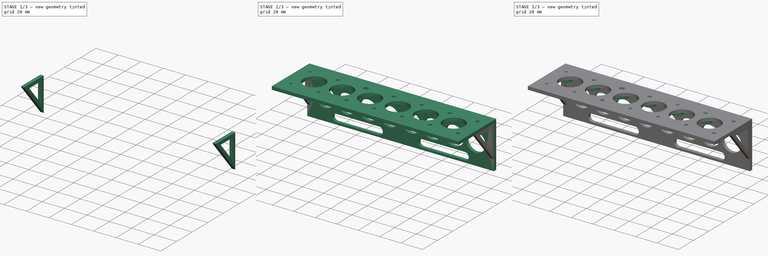
[diagram: build sequence overview — one tinted view per stage of 3, left to right]
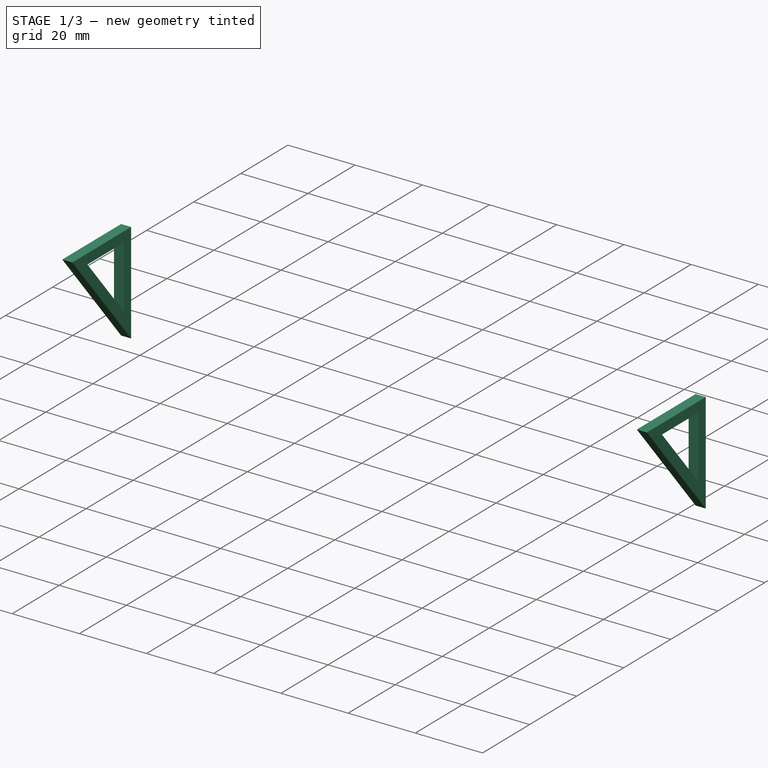
[diagram: stage 1 of 3 — iso view after this stage's code; geometry added in this stage tinted green]
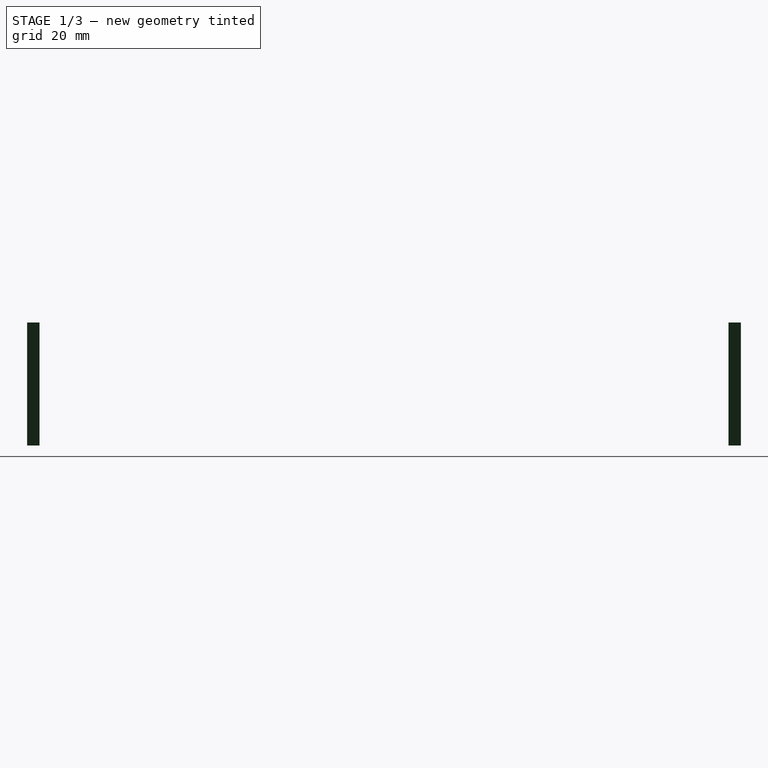
[diagram: stage 1 of 3 — front view after this stage's code; geometry added in this stage tinted green]
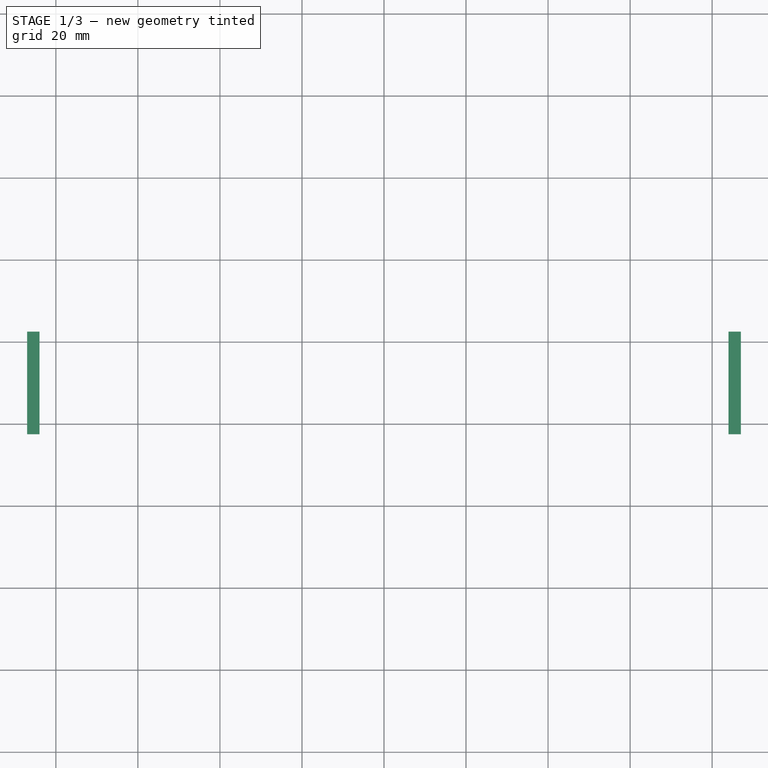
[diagram: stage 1 of 3 — top view after this stage's code; geometry added in this stage tinted green]
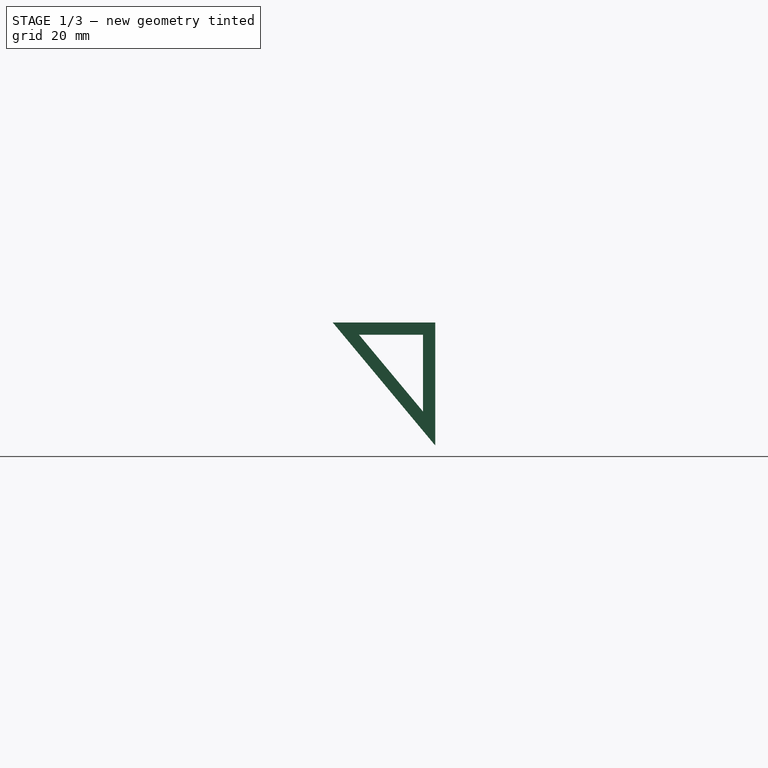
[diagram: stage 1 of 3 — right view after this stage's code; geometry added in this stage tinted green]
FCSTD DOCUMENT  (FreeCAD 0.14R3702 (Git))
Label: mini screwdriver holder
License: CC-BY 3.0
LicenseURL: http://creativecommons.org/licenses/by/3.0/
objects: Sketcher::SketchObject×5, PartDesign::Pad×5, Part::MultiFuse×1
note: 16 computed .brp shape members not serialized (recipe doc carries the construction recipe); baked Part::Feature solids carry a one-line shape summary decoded from their .brp

FEATURE [Sketcher::SketchObject] Sketch003
  Placement = pos=(-87,22,0) rot=(0.57735,0.57735,0.57735;2.0944rad)
  sketch-geometry (6):
    g0: LineSegment StartX=-25 StartY=0 StartZ=0 EndX=0 EndY=0 EndZ=0
    g1: LineSegment StartX=0 StartY=0 StartZ=0 EndX=0 EndY=-30 EndZ=0
    g2: LineSegment StartX=0 StartY=-30 StartZ=0 EndX=-25 EndY=0 EndZ=0
    g3: LineSegment StartX=-18.5949 StartY=-3 StartZ=0 EndX=-3 EndY=-3 EndZ=0
    g4: LineSegment StartX=-3 StartY=-3 StartZ=0 EndX=-3 EndY=-21.7139 EndZ=0
    g5: LineSegment StartX=-3 StartY=-21.7139 StartZ=0 EndX=-18.5949 EndY=-3 EndZ=0
  constraints (17):
    c: Horizontal(g0)
    c: Coincident(g0,g1)
    c: Vertical(g1)
    c: Coincident(g1,g2)
    c: Coincident(g2,g0)
    c: DistanceY(g1) = -30
    c: DistanceX(g0) = 25
    c: Coincident(g0,g-1)
    c: Horizontal(g3)
    c: Coincident(g3,g4)
    c: Vertical(g4)
    c: Coincident(g4,g5)
    c: Coincident(g5,g3)
    c: DistanceY(g-1,g3) = -3
    c: DistanceX(g-1,g3) = -3
    c: Parallel(g5,g2)
    c: Distance(g4,g2) = 3
FEATURE [Sketcher::SketchObject] Sketch004
  Placement = pos=(84,22,0) rot=(0.57735,0.57735,0.57735;2.0944rad)
  sketch-geometry (6):
    g0: LineSegment StartX=-25 StartY=0 StartZ=0 EndX=0 EndY=0 EndZ=0
    g1: LineSegment StartX=0 StartY=0 StartZ=0 EndX=0 EndY=-30 EndZ=0
    g2: LineSegment StartX=0 StartY=-30 StartZ=0 EndX=-25 EndY=0 EndZ=0
    g3: LineSegment StartX=-18.5949 StartY=-3 StartZ=0 EndX=-3 EndY=-3 EndZ=0
    g4: LineSegment StartX=-3 StartY=-3 StartZ=0 EndX=-3 EndY=-21.7139 EndZ=0
    g5: LineSegment StartX=-3 StartY=-21.7139 StartZ=0 EndX=-18.5949 EndY=-3 EndZ=0
  constraints (17):
    c: Horizontal(g0)
    c: Coincident(g0,g1)
    c: Vertical(g1)
    c: Coincident(g1,g2)
    c: Coincident(g2,g0)
    c: DistanceY(g1) = -30
    c: DistanceX(g0) = 25
    c: Coincident(g0,g-1)
    c: Horizontal(g3)
    c: Coincident(g3,g4)
    c: Vertical(g4)
    c: Coincident(g4,g5)
    c: Coincident(g5,g3)
    c: DistanceY(g-1,g3) = -3
    c: DistanceX(g-1,g3) = -3
    c: Parallel(g5,g2)
    c: Distance(g4,g2) = 3
FEATURE [PartDesign::Pad] Pad003
  Length = 3
  Length2 = 100
  Placement = pos=(-87,22,0) rot=(0.57735,0.57735,0.57735;2.0944rad)
  Sketch = -> Sketch003
  Type = 0
FEATURE [PartDesign::Pad] Pad004
  Length = 3
  Length2 = 100
  Placement = pos=(84,22,0) rot=(0.57735,0.57735,0.57735;2.0944rad)
  Sketch = -> Sketch004
  Type = 0
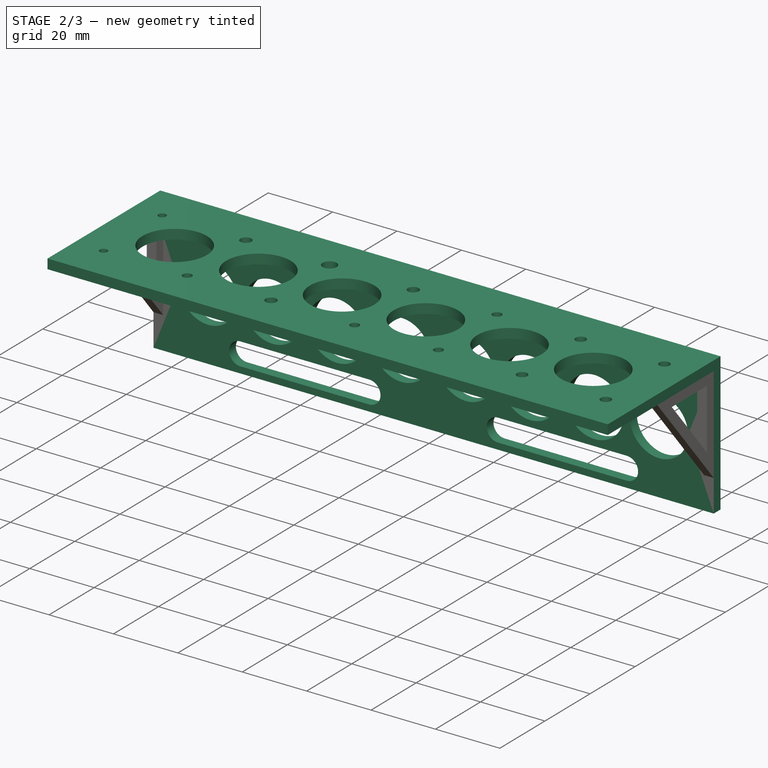
[diagram: stage 2 of 3 — iso view after this stage's code; geometry added in this stage tinted green]
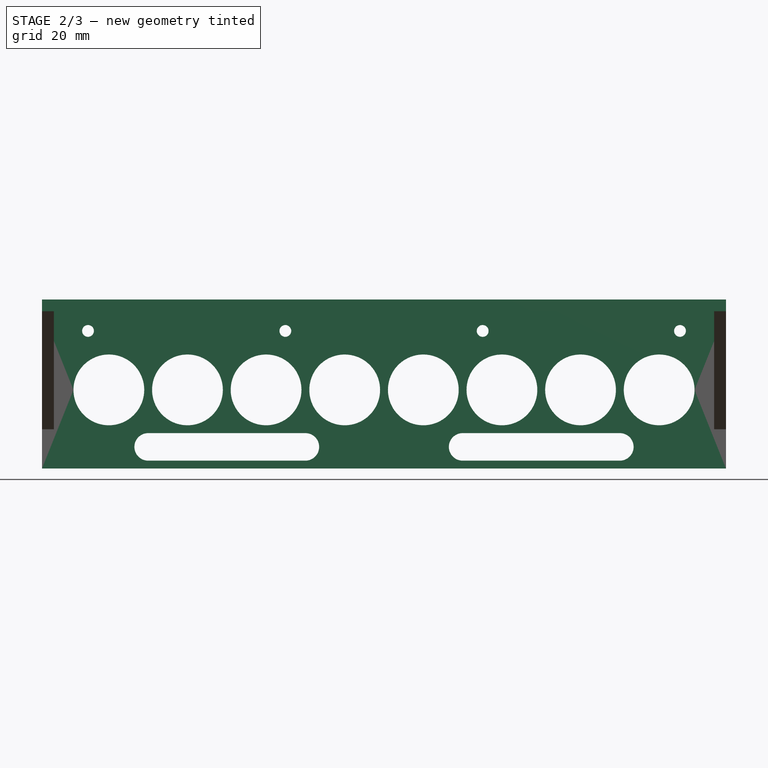
[diagram: stage 2 of 3 — front view after this stage's code; geometry added in this stage tinted green]
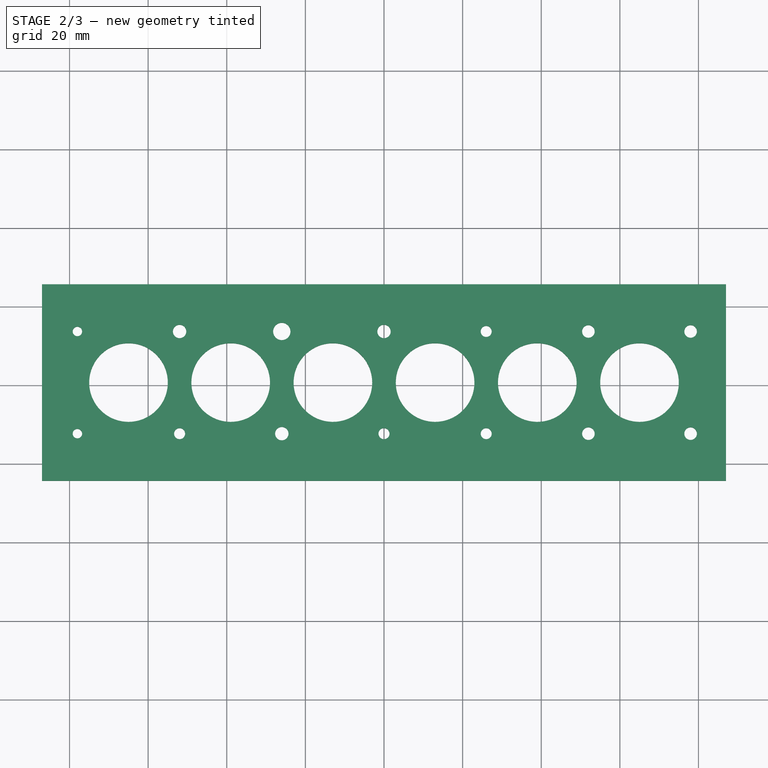
[diagram: stage 2 of 3 — top view after this stage's code; geometry added in this stage tinted green]
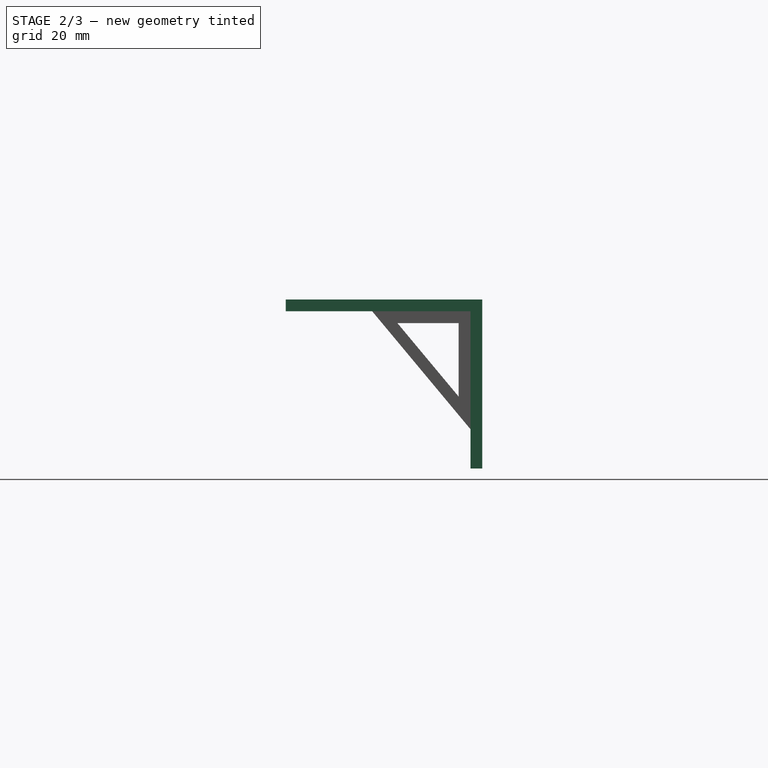
[diagram: stage 2 of 3 — right view after this stage's code; geometry added in this stage tinted green]
FEATURE [Sketcher::SketchObject] Sketch002
  Placement = pos=(0,25,-20) rot=(-1,0,0;4.71239rad)
  sketch-geometry (40):
    g0: LineSegment StartX=-87 StartY=20 StartZ=0 EndX=87 EndY=20 EndZ=0
    g1: LineSegment StartX=87 StartY=20 StartZ=0 EndX=87 EndY=-20 EndZ=0
    g2: LineSegment StartX=87 StartY=-20 StartZ=0 EndX=-87 EndY=-20 EndZ=0
    g3: LineSegment StartX=-87 StartY=-20 StartZ=0 EndX=-87 EndY=20 EndZ=0
    g4: LineSegment [constr] StartX=-70 StartY=0 StartZ=0 EndX=-50 EndY=0 EndZ=0
    g5: LineSegment [constr] StartX=-50 StartY=0 StartZ=0 EndX=-30 EndY=0 EndZ=0
    g6: LineSegment [constr] StartX=-30 StartY=0 StartZ=0 EndX=-10 EndY=0 EndZ=0
    g7: LineSegment [constr] StartX=-10 StartY=0 StartZ=0 EndX=10 EndY=0 EndZ=0
    g8: LineSegment [constr] StartX=10 StartY=0 StartZ=0 EndX=30 EndY=0 EndZ=0
    g9: LineSegment [constr] StartX=30 StartY=0 StartZ=0 EndX=50 EndY=0 EndZ=0
    g10: LineSegment [constr] StartX=50 StartY=0 StartZ=0 EndX=70 EndY=0 EndZ=0
    g11: Circle CenterX=-70 CenterY=0 CenterZ=0 NormalX=0 NormalY=0 NormalZ=1 Radius=9
    g12: Circle CenterX=-50 CenterY=0 CenterZ=0 NormalX=0 NormalY=0 NormalZ=1 Radius=9
    g13: Circle CenterX=-30 CenterY=0 CenterZ=0 NormalX=0 NormalY=0 NormalZ=1 Radius=9
    g14: Circle CenterX=-10 CenterY=0 CenterZ=0 NormalX=0 NormalY=0 NormalZ=1 Radius=9
    g15: Circle CenterX=10 CenterY=0 CenterZ=0 NormalX=0 NormalY=0 NormalZ=1 Radius=9
    g16: Circle CenterX=30 CenterY=0 CenterZ=0 NormalX=0 NormalY=0 NormalZ=1 Radius=9
    g17: Circle CenterX=50 CenterY=0 CenterZ=0 NormalX=0 NormalY=0 NormalZ=1 Radius=9
    g18: Circle CenterX=70 CenterY=0 CenterZ=0 NormalX=0 NormalY=0 NormalZ=1 Radius=9
    g19: LineSegment [constr] StartX=-60 StartY=-14.5 StartZ=0 EndX=-40 EndY=-14.5 EndZ=0
    g20: LineSegment [constr] StartX=-40 StartY=-14.5 StartZ=0 EndX=-20 EndY=-14.5 EndZ=0
    g21: LineSegment [constr] StartX=-20 StartY=-14.5 StartZ=0 EndX=0 EndY=-14.5 EndZ=0
    g22: LineSegment [constr] StartX=0 StartY=-14.5 StartZ=0 EndX=20 EndY=-14.5 EndZ=0
    g23: LineSegment [constr] StartX=20 StartY=-14.5 StartZ=0 EndX=40 EndY=-14.5 EndZ=0
    g24: LineSegment [constr] StartX=40 StartY=-14.5 StartZ=0 EndX=60 EndY=-14.5 EndZ=0
    g25: ArcOfCircle CenterX=-60 CenterY=-14.5 CenterZ=0 NormalX=0 NormalY=0 NormalZ=1 Radius=3.5 StartAngle=1.5708 EndAngle=4.71239
    g26: ArcOfCircle CenterX=-20 CenterY=-14.5 CenterZ=0 NormalX=0 NormalY=0 NormalZ=1 Radius=3.5 StartAngle=4.71239 EndAngle=7.85398
    g27: LineSegment StartX=-60 StartY=-18 StartZ=0 EndX=-20 EndY=-18 EndZ=0
    g28: LineSegment StartX=-60 StartY=-11 StartZ=0 EndX=-20 EndY=-11 EndZ=0
    g29: ArcOfCircle CenterX=20 CenterY=-14.5 CenterZ=0 NormalX=0 NormalY=0 NormalZ=1 Radius=3.5 StartAngle=1.5708 EndAngle=4.71239
    g30: ArcOfCircle CenterX=60 CenterY=-14.5 CenterZ=0 NormalX=0 NormalY=0 NormalZ=1 Radius=3.5 StartAngle=4.71239 EndAngle=7.85399
    g31: LineSegment StartX=20 StartY=-18 StartZ=0 EndX=60 EndY=-18 EndZ=0
    g32: LineSegment StartX=20 StartY=-11 StartZ=0 EndX=60 EndY=-11 EndZ=0
    g33: LineSegment [constr] StartX=-75.3 StartY=15 StartZ=0 EndX=-25.1 EndY=15 EndZ=0
    g34: LineSegment [constr] StartX=25.1 StartY=15 StartZ=0 EndX=75.3 EndY=15 EndZ=0
    g35: LineSegment [constr] StartX=-25.1 StartY=15 StartZ=0 EndX=25.1 EndY=15 EndZ=0
    g36: Circle CenterX=-75.3 CenterY=15 CenterZ=0 NormalX=0 NormalY=0 NormalZ=1 Radius=1.5
    g37: Circle CenterX=-25.1 CenterY=15 CenterZ=0 NormalX=0 NormalY=0 NormalZ=1 Radius=1.5
    g38: Circle CenterX=25.1 CenterY=15 CenterZ=0 NormalX=0 NormalY=0 NormalZ=1 Radius=1.5
    g39: Circle CenterX=75.3 CenterY=15 CenterZ=0 NormalX=0 NormalY=0 NormalZ=1 Radius=1.5
  constraints (113):
    c: Coincident(g0,g1)
    c: Coincident(g1,g2)
    c: Coincident(g2,g3)
    c: Coincident(g3,g0)
    c: Horizontal(g0)
    c: Horizontal(g2)
    c: Vertical(g1)
    c: Vertical(g3)
    c: DistanceX(g2) = -174
    c: Symmetric(g1,g2,g-2)
    c: Symmetric(g1,g0,g-1)
    c: DistanceY(g3) = 40
    c: Horizontal(g4)
    c: Coincident(g4,g5)
    c: Horizontal(g5)
    c: Coincident(g5,g6)
    c: Horizontal(g6)
    c: Coincident(g6,g7)
    c: Horizontal(g7)
    c: Coincident(g7,g8)
    c: Horizontal(g8)
    c: Coincident(g8,g9)
    c: Horizontal(g9)
    c: Coincident(g9,g10)
    c: Horizontal(g10)
    c: PointOnObject(g-1,g7)
    c: Equal(g4,g5)
    c: Equal(g5,g6)
    c: Equal(g6,g7)
    c: Equal(g7,g8)
    c: Equal(g8,g9)
    c: Equal(g9,g10)
    c: DistanceX(g4) = 20
    c: Symmetric(g6,g7,g-2)
    c: Coincident(g11,g4)
    c: Coincident(g12,g4)
    c: Coincident(g13,g5)
    c: Coincident(g14,g6)
    c: Coincident(g15,g7)
    c: Coincident(g16,g8)
    c: Coincident(g17,g9)
    c: Coincident(g18,g10)
    c: Equal(g11,g12)
    c: Equal(g12,g13)
    c: Equal(g13,g14)
    c: Equal(g14,g15)
    c: Equal(g15,g16)
    c: Equal(g16,g17)
    c: Equal(g17,g18)
    c: Radius(g11) = 9
    c: Horizontal(g19)
    c: Coincident(g19,g20)
    c: Horizontal(g20)
    c: Coincident(g20,g21)
    c: PointOnObject(g21,g-2)
    c: Horizontal(g21)
    c: Coincident(g21,g22)
    c: Horizontal(g22)
    c: Coincident(g22,g23)
    c: Horizontal(g23)
    c: Coincident(g23,g24)
    c: Horizontal(g24)
    c: Equal(g19,g20)
    c: Equal(g20,g21)
    c: Equal(g21,g22)
    c: Equal(g22,g23)
    c: Equal(g23,g24)
    c: DistanceX(g19) = 20
    c: Tangent(g25,g27)
    c: Tangent(g25,g28)
    c: Tangent(g26,g27)
    c: Tangent(g26,g28)
    c: Coincident(g25,g28)
    c: Coincident(g25,g27)
    c: Coincident(g27,g26)
    c: Coincident(g28,g26)
    c: Horizontal(g27)
    c: Equal(g25,g26)
    c: Coincident(g25,g19)
    c: Coincident(g26,g20)
    c: DistanceY(g26,g26) = -7
    c: DistanceY(g-1,g21) = -14.5
    c: Tangent(g29,g31)
    c: Tangent(g29,g32)
    c: Tangent(g30,g31)
    c: Tangent(g30,g32)
    c: Coincident(g29,g32)
    c: Coincident(g29,g31)
    c: Coincident(g31,g30)
    c: Coincident(g32,g30)
    c: Horizontal(g31)
    c: Equal(g29,g30)
    c: Coincident(g29,g22)
    c: Coincident(g30,g24)
    c: DistanceY(g30,g30) = -7
    c: Horizontal(g33)
    c: Horizontal(g34)
    c: Symmetric(g33,g34,g-2)
    c: Coincident(g35,g33)
    c: Coincident(g35,g34)
    c: Equal(g35,g33)
    c: DistanceX(g33) = 50.2
    c: Equal(g33,g35)
    c: Equal(g35,g34)
    c: Coincident(g36,g33)
    c: Coincident(g37,g33)
    c: Coincident(g38,g34)
    c: Coincident(g39,g34)
    c: Equal(g39,g38)
    c: Equal(g38,g37)
    c: Equal(g37,g36)
    c: Radius(g39) = 1.5
    c: DistanceY(g33,g0) = 5
FEATURE [PartDesign::Pad] Pad
  Length = 3
  Length2 = 100
  Sketch = -> Sketch
  Type = 0
FEATURE [PartDesign::Pad] Pad002
  Length = 3
  Length2 = 100
  Placement = pos=(0,25,-20) rot=(-1,0,0;4.71239rad)
  Sketch = -> Sketch002
  Type = 0
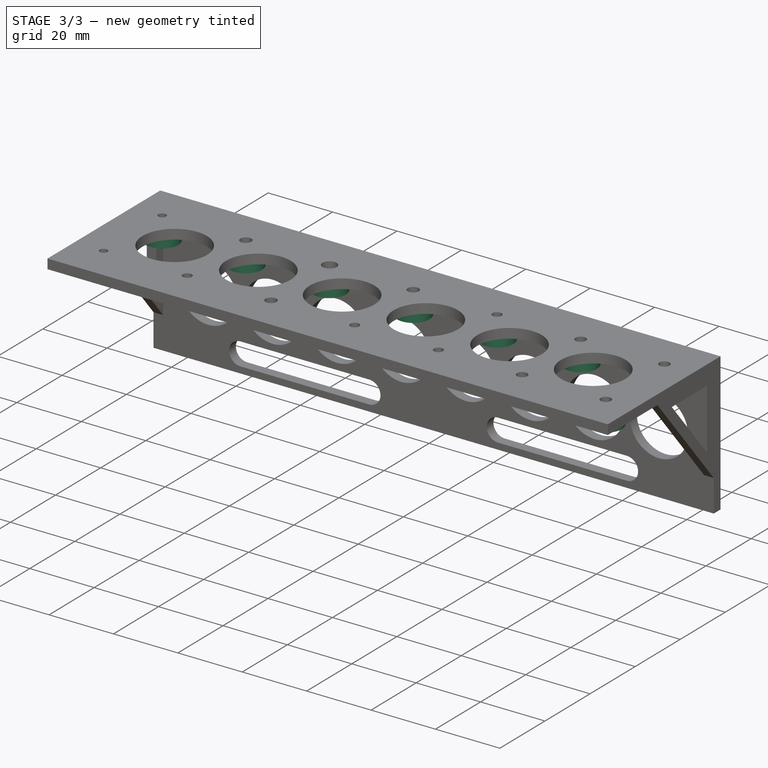
[diagram: stage 3 of 3 — iso view after this stage's code; geometry added in this stage tinted green]
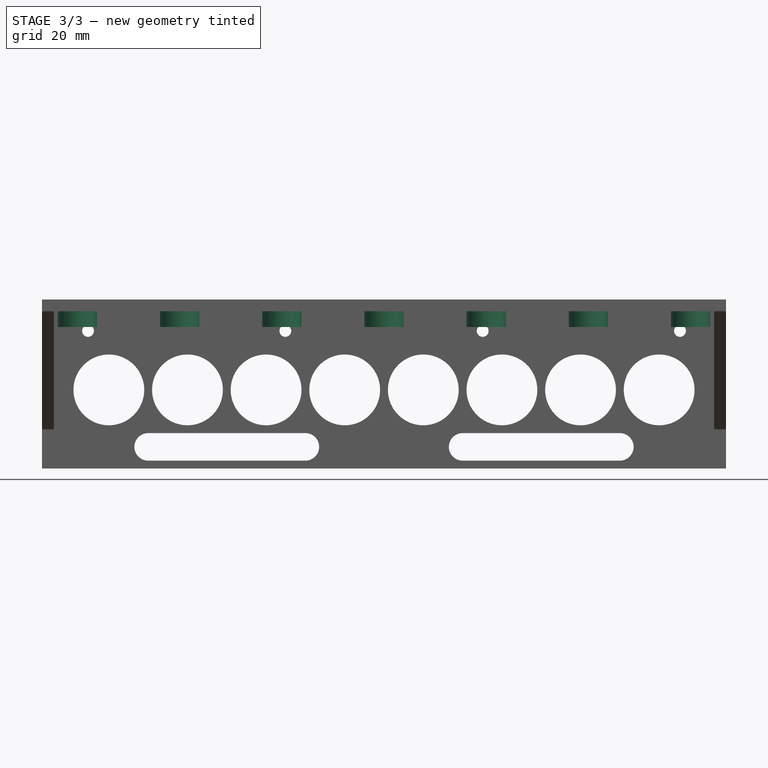
[diagram: stage 3 of 3 — front view after this stage's code; geometry added in this stage tinted green]
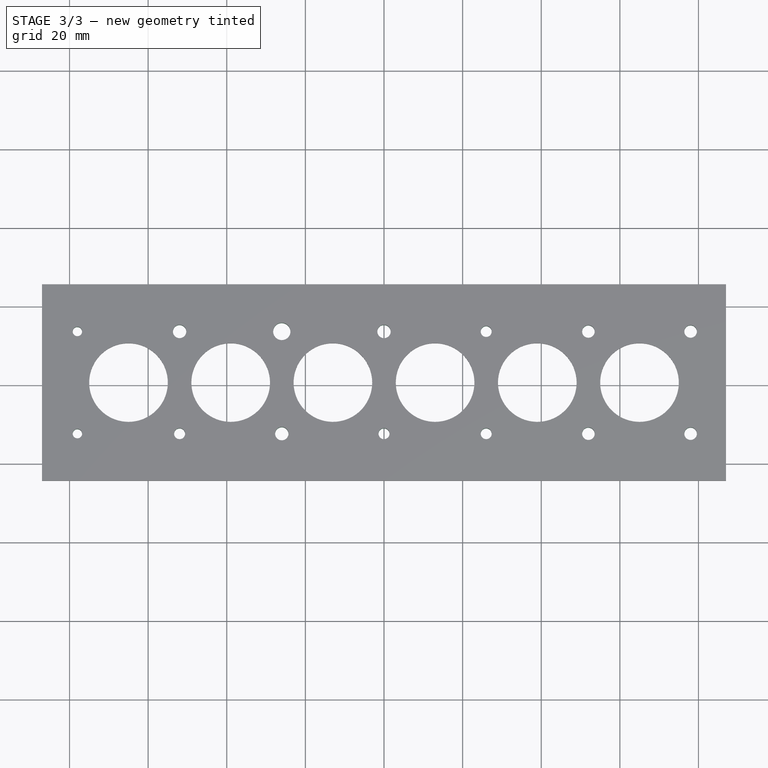
[diagram: stage 3 of 3 — top view after this stage's code; geometry added in this stage tinted green]
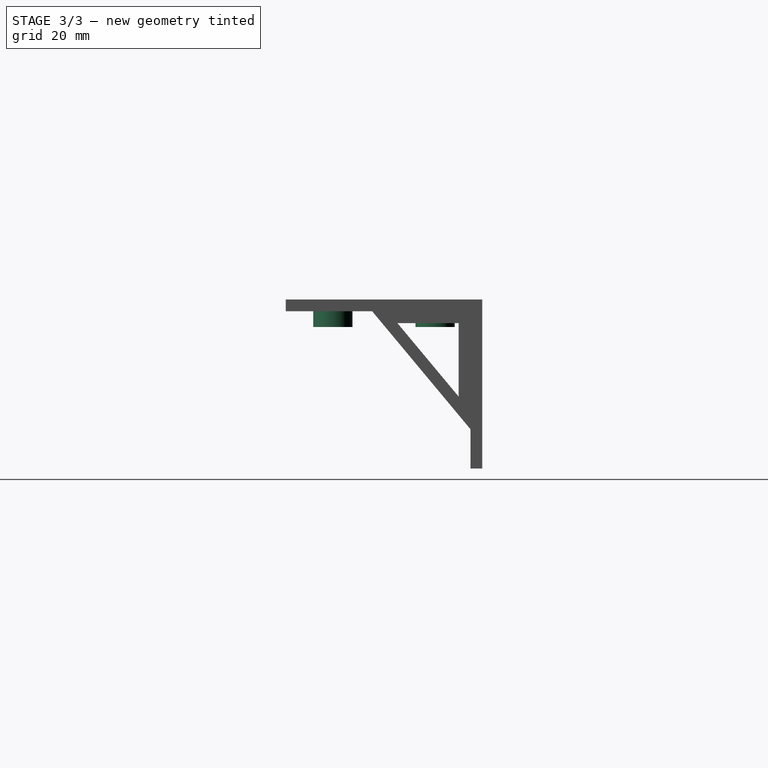
[diagram: stage 3 of 3 — right view after this stage's code; geometry added in this stage tinted green]
FEATURE [Sketcher::SketchObject] Sketch
  sketch-geometry (43):
    g0: LineSegment [constr] StartX=-78 StartY=13 StartZ=0 EndX=-52 EndY=13 EndZ=0
    g1: LineSegment [constr] StartX=-52 StartY=13 StartZ=0 EndX=-26 EndY=13 EndZ=0
    g2: LineSegment [constr] StartX=-26 StartY=13 StartZ=0 EndX=0 EndY=13 EndZ=0
    g3: LineSegment [constr] StartX=0 StartY=13 StartZ=0 EndX=26 EndY=13 EndZ=0
    g4: LineSegment [constr] StartX=26 StartY=13 StartZ=0 EndX=52 EndY=13 EndZ=0
    g5: LineSegment [constr] StartX=52 StartY=13 StartZ=0 EndX=78 EndY=13 EndZ=0
    g6: LineSegment [constr] StartX=78 StartY=13 StartZ=0 EndX=78 EndY=-13 EndZ=0
    g7: LineSegment [constr] StartX=78 StartY=-13 StartZ=0 EndX=52 EndY=-13 EndZ=0
    g8: LineSegment [constr] StartX=52 StartY=-13 StartZ=0 EndX=26 EndY=-13 EndZ=0
    g9: LineSegment [constr] StartX=26 StartY=-13 StartZ=0 EndX=0 EndY=-13 EndZ=0
    g10: LineSegment [constr] StartX=0 StartY=-13 StartZ=0 EndX=-26 EndY=-13 EndZ=0
    g11: LineSegment [constr] StartX=-26 StartY=-13 StartZ=0 EndX=-52 EndY=-13 EndZ=0
    g12: LineSegment [constr] StartX=-52 StartY=-13 StartZ=0 EndX=-78 EndY=-13 EndZ=0
    g13: LineSegment [constr] StartX=-78 StartY=-13 StartZ=0 EndX=-78 EndY=13 EndZ=0
    g14: Circle CenterX=-78 CenterY=13 CenterZ=0 NormalX=0 NormalY=0 NormalZ=1 Radius=1.2
    g15: Circle CenterX=-78 CenterY=-13 CenterZ=0 NormalX=0 NormalY=0 NormalZ=1 Radius=1.2
    g16: Circle CenterX=-52 CenterY=13 CenterZ=0 NormalX=0 NormalY=0 NormalZ=1 Radius=1.7
    g17: Circle CenterX=-52 CenterY=-13 CenterZ=0 NormalX=0 NormalY=0 NormalZ=1 Radius=1.4
    g18: Circle CenterX=-26 CenterY=13 CenterZ=0 NormalX=0 NormalY=0 NormalZ=1 Radius=2.2
    g19: Circle CenterX=-26 CenterY=-13 CenterZ=0 NormalX=0 NormalY=0 NormalZ=1 Radius=1.7
    g20: Circle CenterX=0 CenterY=13 CenterZ=0 NormalX=0 NormalY=0 NormalZ=1 Radius=1.7
    g21: Circle CenterX=0 CenterY=-13 CenterZ=0 NormalX=0 NormalY=0 NormalZ=1 Radius=1.4
    g22: Circle CenterX=26 CenterY=13 CenterZ=0 NormalX=0 NormalY=0 NormalZ=1 Radius=1.4
    g23: Circle CenterX=26 CenterY=-13 CenterZ=0 NormalX=0 NormalY=0 NormalZ=1 Radius=1.4
    g24: Circle CenterX=52 CenterY=13 CenterZ=0 NormalX=0 NormalY=0 NormalZ=1 Radius=1.6
    g25: Circle CenterX=52 CenterY=-13 CenterZ=0 NormalX=0 NormalY=0 NormalZ=1 Radius=1.6
    g26: Circle CenterX=78 CenterY=13 CenterZ=0 NormalX=0 NormalY=0 NormalZ=1 Radius=1.6
    g27: Circle CenterX=78 CenterY=-13 CenterZ=0 NormalX=0 NormalY=0 NormalZ=1 Radius=1.6
    g28: LineSegment StartX=-87 StartY=25 StartZ=0 EndX=87 EndY=25 EndZ=0
    g29: LineSegment StartX=87 StartY=25 StartZ=0 EndX=87 EndY=-25 EndZ=0
    g30: LineSegment StartX=87 StartY=-25 StartZ=0 EndX=-87 EndY=-25 EndZ=0
    g31: LineSegment StartX=-87 StartY=-25 StartZ=0 EndX=-87 EndY=25 EndZ=0
    g32: Circle CenterX=-39 CenterY=0 CenterZ=0 NormalX=0 NormalY=0 NormalZ=1 Radius=10
    g33: Circle CenterX=-13 CenterY=0 CenterZ=0 NormalX=0 NormalY=0 NormalZ=1 Radius=10
    g34: Circle CenterX=13 CenterY=0 CenterZ=0 NormalX=0 NormalY=0 NormalZ=1 Radius=10
    g35: Circle CenterX=39 CenterY=0 CenterZ=0 NormalX=0 NormalY=0 NormalZ=1 Radius=10
    g36: Circle CenterX=65 CenterY=0 CenterZ=0 NormalX=0 NormalY=0 NormalZ=1 Radius=10
    g37: LineSegment [constr] StartX=-65 StartY=0 StartZ=0 EndX=-39 EndY=0 EndZ=0
    g38: LineSegment [constr] StartX=-39 StartY=0 StartZ=0 EndX=-13 EndY=0 EndZ=0
    g39: LineSegment [constr] StartX=-13 StartY=0 StartZ=0 EndX=13 EndY=0 EndZ=0
    g40: LineSegment [constr] StartX=13 StartY=0 StartZ=0 EndX=39 EndY=0 EndZ=0
    g41: LineSegment [constr] StartX=39 StartY=0 StartZ=0 EndX=65 EndY=0 EndZ=0
    g42: Circle CenterX=-65 CenterY=0 CenterZ=0 NormalX=0 NormalY=0 NormalZ=1 Radius=10
  constraints (113):
    c: Horizontal(g0)
    c: Coincident(g0,g1)
    c: Horizontal(g1)
    c: Coincident(g1,g2)
    c: Horizontal(g2)
    c: Coincident(g2,g3)
    c: Horizontal(g3)
    c: Coincident(g3,g4)
    c: Coincident(g4,g5)
    c: Horizontal(g5)
    c: Coincident(g5,g6)
    c: Vertical(g6)
    c: Coincident(g6,g7)
    c: Horizontal(g7)
    c: Coincident(g7,g8)
    c: Horizontal(g8)
    c: Coincident(g8,g9)
    c: Horizontal(g9)
    c: Coincident(g9,g10)
    c: Coincident(g10,g11)
    c: Horizontal(g11)
    c: Coincident(g11,g12)
    c: Coincident(g12,g13)
    c: Coincident(g13,g0)
    c: Horizontal(g12)
    c: Horizontal(g10)
    c: Symmetric(g5,g0,g-2)
    c: Symmetric(g12,g0,g-1)
    c: Equal(g13,g6)
    c: Equal(g0,g1)
    c: Equal(g1,g2)
    c: Equal(g2,g3)
    c: Equal(g3,g4)
    c: Equal(g4,g5)
    c: Equal(g5,g8)
    c: Equal(g8,g9)
    c: Equal(g9,g7)
    c: Equal(g7,g10)
    c: Equal(g10,g11)
    c: Equal(g11,g12)
    c: DistanceX(g12) = -26
    c: Equal(g12,g13)
    c: Equal(g13,g6)
    c: Coincident(g14,g0)
    c: Coincident(g15,g12)
    c: Coincident(g16,g0)
    c: Coincident(g17,g11)
    c: Coincident(g18,g1)
    c: Coincident(g19,g10)
    c: Coincident(g20,g2)
    c: Coincident(g21,g9)
    c: Coincident(g22,g3)
    c: Coincident(g23,g8)
    c: Coincident(g24,g4)
    c: Coincident(g25,g7)
    c: Coincident(g26,g5)
    c: Coincident(g27,g6)
    c: Radius(g14) = 1.2
    c: Radius(g15) = 1.2
    c: Radius(g16) = 1.7
    c: Radius(g17) = 1.4
    c: Radius(g18) = 2.2
    c: Radius(g19) = 1.7
    c: Radius(g20) = 1.7
    c: Radius(g21) = 1.4
    c: Radius(g22) = 1.4
    c: Radius(g23) = 1.4
    c: Equal(g26,g27)
    c: Equal(g27,g25)
    c: Equal(g25,g24)
    c: Radius(g24) = 1.6
    c: Coincident(g28,g29)
    c: Coincident(g29,g30)
    c: Coincident(g30,g31)
    c: Coincident(g31,g28)
    c: Horizontal(g28)
    c: Horizontal(g30)
    c: Vertical(g29)
    c: Vertical(g31)
    c: DistanceX(g5,g28) = 9
    c: DistanceY(g5,g28) = 12
    c: DistanceY(g29,g6) = 12
    c: DistanceX(g0,g28) = -9
    c: PointOnObject(g32,g-1)
    c: PointOnObject(g33,g-1)
    c: PointOnObject(g35,g-1)
    c: PointOnObject(g36,g-1)
    c: Coincident(g37,g32)
    c: Horizontal(g37)
    c: Coincident(g37,g38)
    c: Coincident(g38,g33)
    c: Coincident(g38,g39)
    c: Coincident(g39,g34)
    c: Coincident(g39,g40)
    c: Coincident(g40,g35)
    c: Horizontal(g40)
    c: Coincident(g40,g41)
    c: Coincident(g41,g36)
    c: Horizontal(g41)
    c: Equal(g36,g35)
    c: Equal(g35,g34)
    c: Equal(g34,g33)
    c: Equal(g33,g32)
    c: Equal(g37,g38)
    c: Equal(g38,g39)
    c: Equal(g39,g40)
    c: Equal(g40,g41)
    c: DistanceX(g37) = 26
    c: Coincident(g42,g37)
    c: Equal(g32,g42)
    c: Horizontal(g39)
    c: Symmetric(g33,g34,g-2)
    c: Radius(g36) = 10
FEATURE [Sketcher::SketchObject] Sketch001
  Placement = pos=(0,0,-4) rot=(0,0,1;0rad)
  sketch-geometry (42):
    g0: LineSegment [constr] StartX=-78 StartY=13 StartZ=0 EndX=-52 EndY=13 EndZ=0
    g1: LineSegment [constr] StartX=-52 StartY=13 StartZ=0 EndX=-26 EndY=13 EndZ=0
    g2: LineSegment [constr] StartX=-26 StartY=13 StartZ=0 EndX=0 EndY=13 EndZ=0
    g3: LineSegment [constr] StartX=0 StartY=13 StartZ=0 EndX=26 EndY=13 EndZ=0
    g4: LineSegment [constr] StartX=26 StartY=13 StartZ=0 EndX=52 EndY=13 EndZ=0
    g5: LineSegment [constr] StartX=52 StartY=13 StartZ=0 EndX=78 EndY=13 EndZ=0
    g6: LineSegment [constr] StartX=78 StartY=13 StartZ=0 EndX=78 EndY=-13 EndZ=0
    g7: LineSegment [constr] StartX=78 StartY=-13 StartZ=0 EndX=52 EndY=-13 EndZ=0
    g8: LineSegment [constr] StartX=52 StartY=-13 StartZ=0 EndX=26 EndY=-13 EndZ=0
    g9: LineSegment [constr] StartX=26 StartY=-13 StartZ=0 EndX=0 EndY=-13 EndZ=0
    g10: LineSegment [constr] StartX=0 StartY=-13 StartZ=0 EndX=-26 EndY=-13 EndZ=0
    g11: LineSegment [constr] StartX=-26 StartY=-13 StartZ=0 EndX=-52 EndY=-13 EndZ=0
    g12: LineSegment [constr] StartX=-52 StartY=-13 StartZ=0 EndX=-78 EndY=-13 EndZ=0
    g13: LineSegment [constr] StartX=-78 StartY=-13 StartZ=0 EndX=-78 EndY=13 EndZ=0
    g14: Circle CenterX=-78 CenterY=13 CenterZ=0 NormalX=0 NormalY=0 NormalZ=1 Radius=1.2
    g15: Circle CenterX=-78 CenterY=-13 CenterZ=0 NormalX=0 NormalY=0 NormalZ=1 Radius=1.2
    g16: Circle CenterX=-52 CenterY=13 CenterZ=0 NormalX=0 NormalY=0 NormalZ=1 Radius=1.7
    g17: Circle CenterX=-52 CenterY=-13 CenterZ=0 NormalX=0 NormalY=0 NormalZ=1 Radius=1.4
    g18: Circle CenterX=-26 CenterY=13 CenterZ=0 NormalX=0 NormalY=0 NormalZ=1 Radius=2.2
    g19: Circle CenterX=-26 CenterY=-13 CenterZ=0 NormalX=0 NormalY=0 NormalZ=1 Radius=1.7
    g20: Circle CenterX=0 CenterY=13 CenterZ=0 NormalX=0 NormalY=0 NormalZ=1 Radius=1.7
    g21: Circle CenterX=0 CenterY=-13 CenterZ=0 NormalX=0 NormalY=0 NormalZ=1 Radius=1.4
    g22: Circle CenterX=26 CenterY=13 CenterZ=0 NormalX=0 NormalY=0 NormalZ=1 Radius=1.4
    g23: Circle CenterX=26 CenterY=-13 CenterZ=0 NormalX=0 NormalY=0 NormalZ=1 Radius=1.4
    g24: Circle CenterX=52 CenterY=13 CenterZ=0 NormalX=0 NormalY=0 NormalZ=1 Radius=1.6
    g25: Circle CenterX=52 CenterY=-13 CenterZ=0 NormalX=0 NormalY=0 NormalZ=1 Radius=1.6
    g26: Circle CenterX=78 CenterY=13 CenterZ=0 NormalX=0 NormalY=0 NormalZ=1 Radius=1.6
    g27: Circle CenterX=78 CenterY=-13 CenterZ=0 NormalX=0 NormalY=0 NormalZ=1 Radius=1.6
    g28: Circle CenterX=-78 CenterY=13 CenterZ=0 NormalX=0 NormalY=0 NormalZ=1 Radius=5
    g29: Circle CenterX=-78 CenterY=-13 CenterZ=0 NormalX=0 NormalY=0 NormalZ=1 Radius=5
    g30: Circle CenterX=-52 CenterY=13 CenterZ=0 NormalX=0 NormalY=0 NormalZ=1 Radius=5
    g31: Circle CenterX=-52 CenterY=-13 CenterZ=0 NormalX=0 NormalY=0 NormalZ=1 Radius=5
    g32: Circle CenterX=-26 CenterY=13 CenterZ=0 NormalX=0 NormalY=0 NormalZ=1 Radius=5
    g33: Circle CenterX=-26 CenterY=-13 CenterZ=0 NormalX=0 NormalY=0 NormalZ=1 Radius=5
    g34: Circle CenterX=0 CenterY=13 CenterZ=0 NormalX=0 NormalY=0 NormalZ=1 Radius=5
    g35: Circle CenterX=0 CenterY=-13 CenterZ=0 NormalX=0 NormalY=0 NormalZ=1 Radius=5
    g36: Circle CenterX=26 CenterY=13 CenterZ=0 NormalX=0 NormalY=0 NormalZ=1 Radius=5
    g37: Circle CenterX=26 CenterY=-13 CenterZ=0 NormalX=0 NormalY=0 NormalZ=1 Radius=5
    g38: Circle CenterX=52 CenterY=13 CenterZ=0 NormalX=0 NormalY=0 NormalZ=1 Radius=5
    g39: Circle CenterX=52 CenterY=-13 CenterZ=0 NormalX=0 NormalY=0 NormalZ=1 Radius=5
    g40: Circle CenterX=78 CenterY=13 CenterZ=0 NormalX=0 NormalY=0 NormalZ=1 Radius=5
    g41: Circle CenterX=78 CenterY=-13 CenterZ=0 NormalX=0 NormalY=0 NormalZ=1 Radius=5
  constraints (99):
    c: Horizontal(g0)
    c: Coincident(g0,g1)
    c: Horizontal(g1)
    c: Coincident(g1,g2)
    c: Horizontal(g2)
    c: Coincident(g2,g3)
    c: Horizontal(g3)
    c: Coincident(g3,g4)
    c: Coincident(g4,g5)
    c: Horizontal(g5)
    c: Coincident(g5,g6)
    c: Vertical(g6)
    c: Coincident(g6,g7)
    c: Horizontal(g7)
    c: Coincident(g7,g8)
    c: Horizontal(g8)
    c: Coincident(g8,g9)
    c: Horizontal(g9)
    c: Coincident(g9,g10)
    c: Coincident(g10,g11)
    c: Horizontal(g11)
    c: Coincident(g11,g12)
    c: Coincident(g12,g13)
    c: Coincident(g13,g0)
    c: Horizontal(g12)
    c: Horizontal(g10)
    c: Symmetric(g5,g0,g-2)
    c: Symmetric(g12,g0,g-1)
    c: Equal(g13,g6)
    c: Equal(g0,g1)
    c: Equal(g1,g2)
    c: Equal(g2,g3)
    c: Equal(g3,g4)
    c: Equal(g4,g5)
    c: Equal(g5,g8)
    c: Equal(g8,g9)
    c: Equal(g9,g7)
    c: Equal(g7,g10)
    c: Equal(g10,g11)
    c: Equal(g11,g12)
    c: DistanceX(g12) = -26
    c: Equal(g12,g13)
    c: Equal(g13,g6)
    c: Coincident(g14,g0)
    c: Coincident(g15,g12)
    c: Coincident(g16,g0)
    c: Coincident(g17,g11)
    c: Coincident(g18,g1)
    c: Coincident(g19,g10)
    c: Coincident(g20,g2)
    c: Coincident(g21,g9)
    c: Coincident(g22,g3)
    c: Coincident(g23,g8)
    c: Coincident(g24,g4)
    c: Coincident(g25,g7)
    c: Coincident(g26,g5)
    c: Coincident(g27,g6)
    c: Radius(g14) = 1.2
    c: Radius(g15) = 1.2
    c: Radius(g16) = 1.7
    c: Radius(g17) = 1.4
    c: Radius(g18) = 2.2
    c: Radius(g19) = 1.7
    c: Radius(g20) = 1.7
    c: Radius(g21) = 1.4
    c: Radius(g22) = 1.4
    c: Radius(g23) = 1.4
    c: Equal(g26,g27)
    c: Equal(g27,g25)
    c: Equal(g25,g24)
    c: Radius(g24) = 1.6
    c: Coincident(g28,g0)
    c: Coincident(g29,g12)
    c: Coincident(g30,g0)
    c: Coincident(g31,g11)
    c: Coincident(g32,g1)
    c: Coincident(g33,g10)
    c: Coincident(g34,g2)
    c: Coincident(g35,g9)
    c: Coincident(g36,g3)
    c: Coincident(g37,g8)
    c: Coincident(g38,g4)
    c: Coincident(g39,g7)
    c: Coincident(g40,g5)
    c: Coincident(g41,g6)
    c: Equal(g29,g31)
    c: Equal(g31,g33)
    c: Equal(g33,g35)
    c: Equal(g35,g37)
    c: Equal(g37,g39)
    c: Equal(g39,g41)
    c: Equal(g41,g40)
    c: Equal(g40,g38)
    c: Equal(g38,g36)
    c: Equal(g36,g34)
    c: Equal(g34,g32)
    c: Equal(g32,g30)
    c: Equal(g30,g28)
    c: Radius(g40) = 5
FEATURE [PartDesign::Pad] Pad001
  Length = 4
  Length2 = 100
  Placement = pos=(0,0,-4) rot=(0,0,1;0rad)
  Sketch = -> Sketch001
  Type = 0
FEATURE [Part::MultiFuse] Fusion
  Shapes = -> [Pad001,Pad,Pad002,Pad003,Pad004]
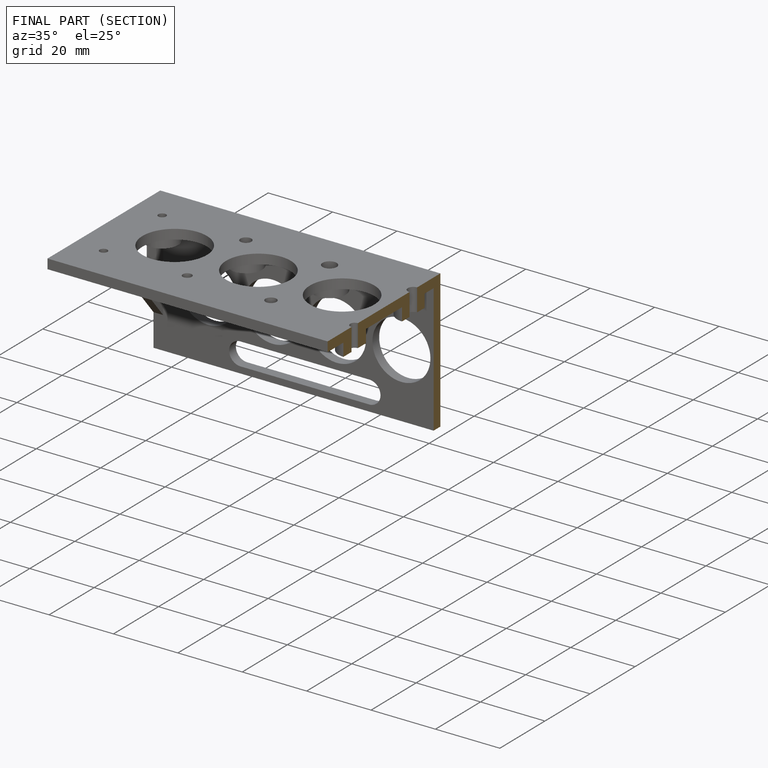
[diagram: finished part — half-section view (interior)]
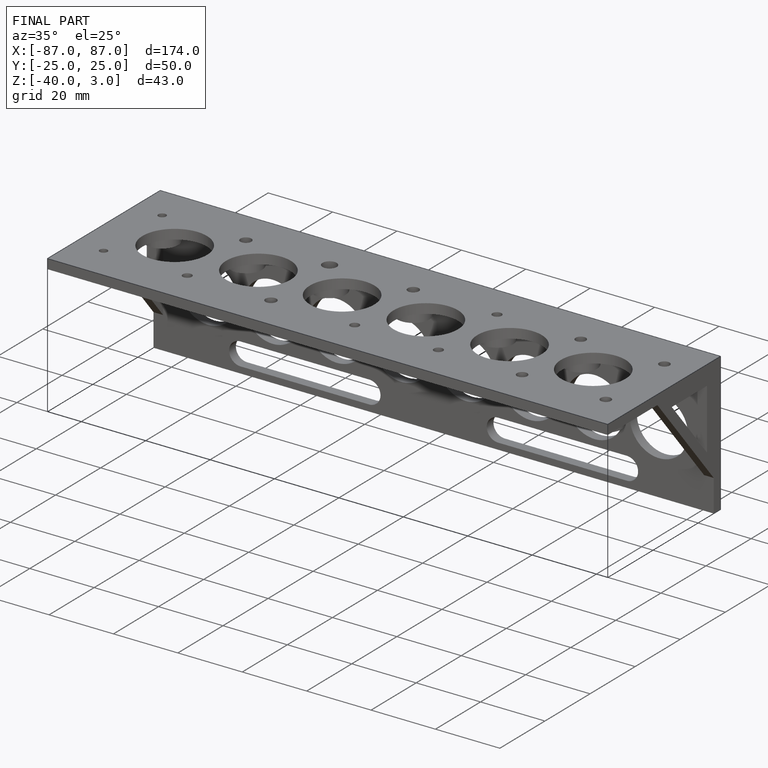
[diagram: finished part — iso view with bounding-box wireframe]
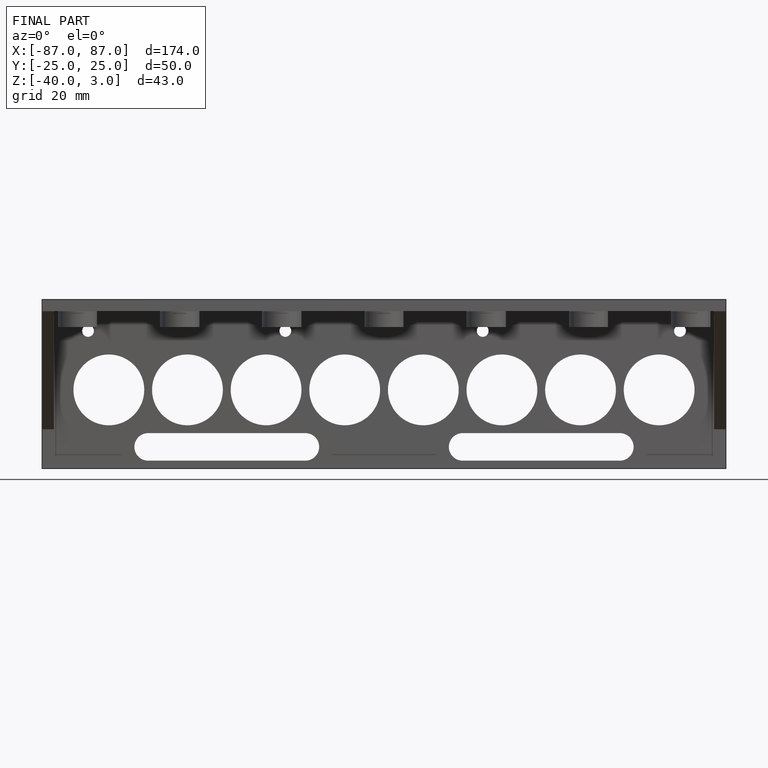
[diagram: finished part — front view with bounding-box wireframe]
